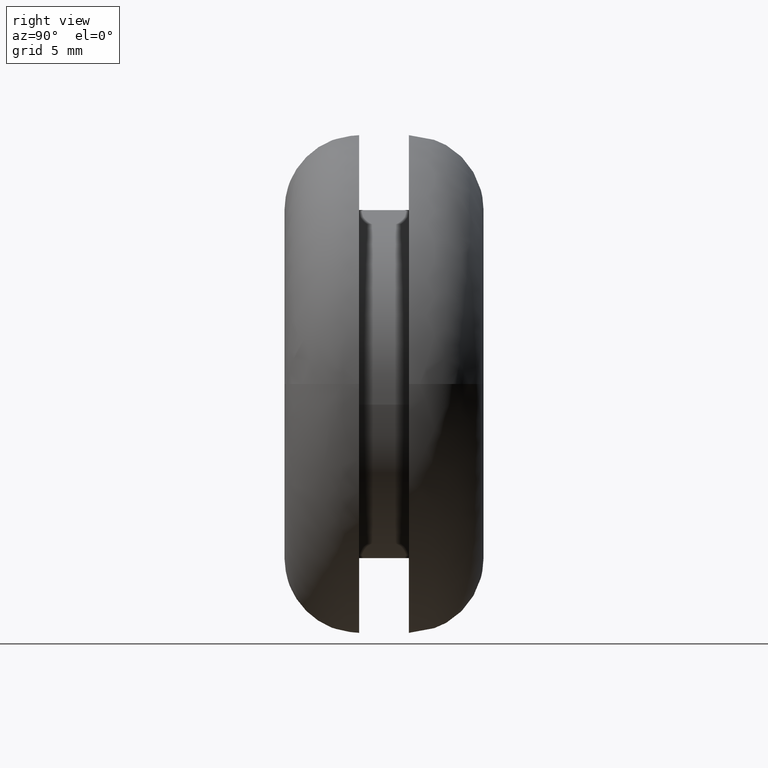
[diagram: clean part render]
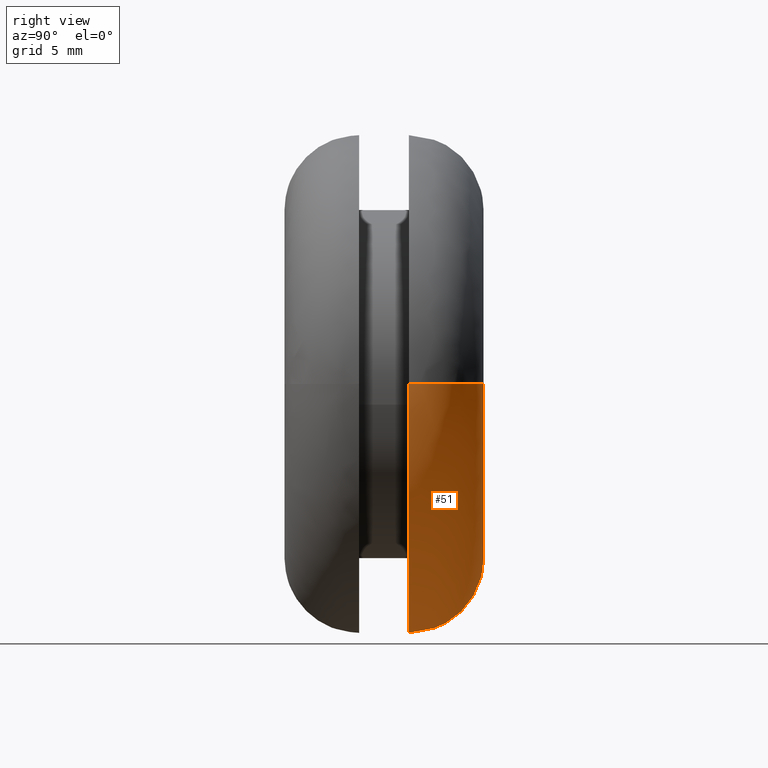
[diagram: same view with one face highlighted and labeled with its STEP entity id]
A machine part, right view. The second image highlights one B-rep face of the part: STEP entity #51.
In plain terms, the highlighted face is a freeform B-spline surface patch.
Its self-contained STEP definition (entity closure, byte-faithful):
#51=ADVANCED_FACE('',(#167),#166,.T.);
#166=( BOUNDED_SURFACE() B_SPLINE_SURFACE( 2,2,((#298,#299,#300,#301,#302),(#303,#304,#305,#306,#307),(#308,#309,#310,#311,#312),(#313,#314,#315,#316,#317),(#318,#319,#320,#321,#322)), .UNSPECIFIED.,.F.,.F.,.F.) B_SPLINE_SURFACE_WITH_KNOTS((3,2,3),(3,2,3),(-1.57079701149E+000,-1.04711990935E+000,2.32925527740E-004),(3.14159265359E+000,4.71238898038E+000,6.28318530718E+000), .UNSPECIFIED. ) GEOMETRIC_REPRESENTATION_ITEM() RATIONAL_B_SPLINE_SURFACE(((9.32993290127E-001,6.59725882250E-001,9.32993290127E-001,6.59725882250E-001,9.32993290127E-001),(9.32993202517E-001,6.59725820301E-001,9.32993202517E-001,6.59725820301E-001,9.32993202517E-001),(1.00000000000E+000,7.07106781187E-001,1.00000000000E+000,7.07106781187E-001,1.00000000000E+000),(8.65986580253E-001,6.12344983313E-001,8.65986580253E-001,6.12344983313E-001,8.65986580253E-001),(1.00000000000E+000,7.07106781187E-001,1.00000000000E+000,7.07106781187E-001,1.00000000000E+000))) REPRESENTATION_ITEM('') SURFACE() );
#167=FACE_OUTER_BOUND('',#323,.T.);
#298=CARTESIAN_POINT('',(6.99999789766E+000,8.00000000000E+000,-2.15826679720E-015));
#299=CARTESIAN_POINT('',(6.99999789766E+000,8.00000000000E+000,-6.99999789766E+000));
#300=CARTESIAN_POINT('',(-1.45567342527E-013,8.00000000000E+000,-6.99999789766E+000));
#301=CARTESIAN_POINT('',(-6.99999789766E+000,8.00000000000E+000,-6.99999789766E+000));
#302=CARTESIAN_POINT('',(-6.99999789766E+000,8.00000000000E+000,-4.43818416761E-016));
#303=CARTESIAN_POINT('',(7.80397142733E+000,8.00000056341E+000,-2.25672190648E-015));
#304=CARTESIAN_POINT('',(7.80397142733E+000,8.00000056341E+000,-7.80397142733E+000));
#305=CARTESIAN_POINT('',(-1.45665754606E-013,8.00000056341E+000,-7.80397142733E+000));
#306=CARTESIAN_POINT('',(-7.80397142733E+000,8.00000056341E+000,-7.80397142733E+000));
#307=CARTESIAN_POINT('',(-7.80397142733E+000,8.00000056341E+000,-3.45363307487E-016));
#308=CARTESIAN_POINT('',(8.50020171490E+000,7.59795974076E+000,-2.34198270987E-015));
#309=CARTESIAN_POINT('',(8.50020171490E+000,7.59795974076E+000,-8.50020171490E+000));
#310=CARTESIAN_POINT('',(-1.76456587168E-013,7.59795974076E+000,-8.50020171490E+000));
#311=CARTESIAN_POINT('',(-8.50020171490E+000,7.59795974076E+000,-8.50020171490E+000));
#312=CARTESIAN_POINT('',(-8.50020171490E+000,7.59795974076E+000,-2.60102504098E-016));
#313=CARTESIAN_POINT('',(1.00004034298E+001,6.73166256529E+000,-2.52569836508E-015));
#314=CARTESIAN_POINT('',(1.00004034298E+001,6.73166256529E+000,-1.00004034298E+001));
#315=CARTESIAN_POINT('',(-2.42803111640E-013,6.73166256529E+000,-1.00004034298E+001));
#316=CARTESIAN_POINT('',(-1.00004034298E+001,6.73166256529E+000,-1.00004034298E+001));
#317=CARTESIAN_POINT('',(-1.00004034298E+001,6.73166256529E+000,-7.63868488899E-017));
#318=CARTESIAN_POINT('',(9.99999991862E+000,4.99930122342E+000,-2.52564895084E-015));
#319=CARTESIAN_POINT('',(9.99999991862E+000,4.99930122342E+000,-9.99999991862E+000));
#320=CARTESIAN_POINT('',(-3.75110883963E-013,4.99930122342E+000,-9.99999991862E+000));
#321=CARTESIAN_POINT('',(-9.99999991862E+000,4.99930122342E+000,-9.99999991862E+000));
#322=CARTESIAN_POINT('',(-9.99999991862E+000,4.99930122342E+000,-7.64362631262E-017));
#323=EDGE_LOOP('',(#391,#392,#393,#394,#395,#396,#397));
#391=ORIENTED_EDGE('',*,*,#399,.F.);
#392=ORIENTED_EDGE('',*,*,#398,.F.);
#393=ORIENTED_EDGE('',*,*,#402,.F.);
#394=ORIENTED_EDGE('',*,*,#433,.F.);
#395=ORIENTED_EDGE('',*,*,#406,.T.);
#396=ORIENTED_EDGE('',*,*,#408,.T.);
#397=ORIENTED_EDGE('',*,*,#434,.T.);
#398=EDGE_CURVE('',#435,#436,#437,.T.);
#399=EDGE_CURVE('',#436,#443,#444,.T.);
#402=EDGE_CURVE('',#457,#435,#464,.T.);
#406=EDGE_CURVE('',#491,#492,#493,.T.);
#408=EDGE_CURVE('',#492,#499,#506,.T.);
#433=EDGE_CURVE('',#491,#457,#674,.T.);
#434=EDGE_CURVE('',#499,#443,#680,.T.);
#435=VERTEX_POINT('',#686);
#436=VERTEX_POINT('',#687);
#437=CIRCLE('',#691,1.00000000000E+001);
#443=VERTEX_POINT('',#692);
#444=CIRCLE('',#696,1.00000000000E+001);
#457=VERTEX_POINT('',#702);
#464=CIRCLE('',#710,1.00000000000E+001);
#491=VERTEX_POINT('',#726);
#492=VERTEX_POINT('',#727);
#493=CIRCLE('',#731,7.00000000836E+000);
#499=VERTEX_POINT('',#732);
#506=CIRCLE('',#740,7.00000000836E+000);
#674=(BOUNDED_CURVE() B_SPLINE_CURVE(2,(#847,#848,#849,#850,#851),.UNSPECIFIED.,.F.,.F.) B_SPLINE_CURVE_WITH_KNOTS((3,2,3),(-1.57079631639E+000,-1.04711990935E+000,-1.02800257112E-005),.UNSPECIFIED.) CURVE() GEOMETRIC_REPRESENTATION_ITEM() RATIONAL_B_SPLINE_CURVE((9.32993290126E-001,9.32993291458E-001,1.00000000000E+000,8.66017699477E-001,9.99937776004E-001)) REPRESENTATION_ITEM('') );
#680=(BOUNDED_CURVE() B_SPLINE_CURVE(2,(#852,#853,#854,#855,#856),.UNSPECIFIED.,.F.,.F.) B_SPLINE_CURVE_WITH_KNOTS((3,2,3),(-1.57079701149E+000,-1.04711990935E+000,2.32925527740E-004),.UNSPECIFIED.) CURVE() GEOMETRIC_REPRESENTATION_ITEM() RATIONAL_B_SPLINE_CURVE((9.32993290127E-001,9.32993202517E-001,1.00000000000E+000,8.65986580253E-001,1.00000000000E+000)) REPRESENTATION_ITEM('') );
#686=CARTESIAN_POINT('',(0.00000000000E+000,5.00000000000E+000,-1.00000000000E+001));
#687=CARTESIAN_POINT('',(9.93311709961E+000,4.99999788492E+000,-1.15463617012E+000));
#688=CARTESIAN_POINT('',(-9.10382880193E-013,4.99999894246E+000,-2.81730194729E-012));
#689=DIRECTION('',(-1.18758841895E-007,-1.00000000000E+000,-1.05753828805E-007));
#690=DIRECTION('',(-9.10382880193E-014,-1.05753828805E-007,1.00000000000E+000));
#691=AXIS2_PLACEMENT_3D('',#688,#689,#690);
#692=CARTESIAN_POINT('',(9.99999999999E+000,4.99999800073E+000,1.08765567577E-005));
#693=CARTESIAN_POINT('',(-3.73034936274E-013,4.99999894246E+000,2.71249689376E-012));
#694=DIRECTION('',(-9.41729651498E-008,-1.00000000000E+000,1.05753828768E-007));
#695=DIRECTION('',(-9.93311709961E-001,1.05753828628E-007,1.15463617013E-001));
#696=AXIS2_PLACEMENT_3D('',#693,#694,#695);
#702=CARTESIAN_POINT('',(-1.00000000000E+001,4.99999795693E+000,1.31552490000E-008));
#707=CARTESIAN_POINT('',(3.29514193709E-013,4.99999897846E+000,-1.07025499574E-012));
#708=DIRECTION('',(1.02153652425E-007,-1.00000000000E+000,-1.02153652680E-007));
#709=DIRECTION('',(1.00000000000E+000,1.02153652559E-007,-1.31563192550E-009));
#710=AXIS2_PLACEMENT_3D('',#707,#708,#709);
#726=CARTESIAN_POINT('',(-7.00000001214E+000,8.00000000000E+000,-1.06121232557E-007));
#727=CARTESIAN_POINT('',(-3.88578058619E-015,8.00000000000E+000,-7.00000001671E+000));
#728=CARTESIAN_POINT('',(-3.78966591441E-009,8.00000000000E+000,-8.35507263375E-009));
#729=DIRECTION('',(2.64164725180E-016,-1.00000000000E+000,2.27254708015E-015));
#730=DIRECTION('',(5.41380662522E-010,-2.27254708001E-015,-1.00000000000E+000));
#731=AXIS2_PLACEMENT_3D('',#728,#729,#730);
#732=CARTESIAN_POINT('',(7.00000000457E+000,8.00000000000E+000,2.67600900346E-008));
#737=CARTESIAN_POINT('',(-3.78966591441E-009,8.00000000000E+000,-8.35507263375E-009));
#738=DIRECTION('',(2.64164725180E-016,-1.00000000000E+000,2.27254708015E-015));
#739=DIRECTION('',(5.41380662522E-010,-2.27254708001E-015,-1.00000000000E+000));
#740=AXIS2_PLACEMENT_3D('',#737,#738,#739);
#847=CARTESIAN_POINT('',(-7.00000003195E+000,8.00000000000E+000,-4.43818155395E-016));
#848=CARTESIAN_POINT('',(-7.80397241783E+000,7.99999999144E+000,-3.45363186189E-016));
#849=CARTESIAN_POINT('',(-8.50020171490E+000,7.59795974076E+000,-2.60102504098E-016));
#850=CARTESIAN_POINT('',(-1.00000011730E+001,6.73189484999E+000,-7.64361095098E-017));
#851=CARTESIAN_POINT('',(-1.00000000000E+001,4.99999796807E+000,-7.64362531603E-017));
#852=CARTESIAN_POINT('',(6.99999789766E+000,8.00000000000E+000,-2.15826679720E-015));
#853=CARTESIAN_POINT('',(7.80397142733E+000,8.00000056341E+000,-2.25672190648E-015));
#854=CARTESIAN_POINT('',(8.50020171490E+000,7.59795974076E+000,-2.34198270987E-015));
#855=CARTESIAN_POINT('',(1.00004034298E+001,6.73166256529E+000,-2.52569836508E-015));
#856=CARTESIAN_POINT('',(9.99999991862E+000,4.99930122342E+000,-2.52564895084E-015));